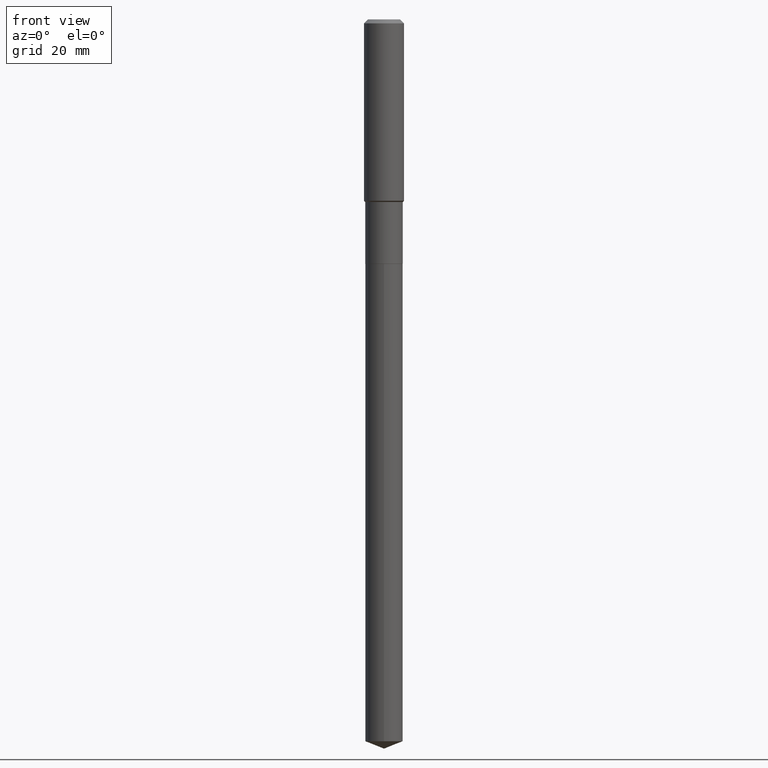
[diagram: clean part render]
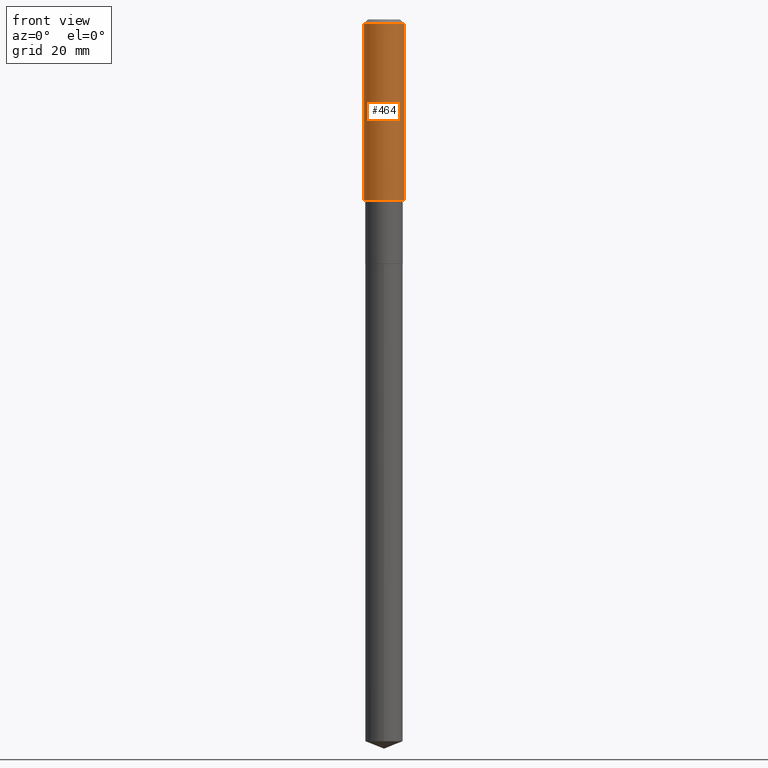
[diagram: same view with one face highlighted and labeled with its STEP entity id]
A machine part, front view. The second image highlights one B-rep face of the part: STEP entity #464.
In plain terms, the highlighted cylindrical surface (edge-blend (fillet) strip) has radius 5 mm, axis along (-0, 0, 1).
Its self-contained STEP definition (entity closure, byte-faithful):
#1 = VERTEX_POINT ( 'NONE', #459 ) ;
#26 = DIRECTION ( 'NONE',  ( -2.445468806185136597E-29, 3.491481338843145583E-15, 1.000000000000000000 ) ) ;
#29 = AXIS2_PLACEMENT_3D ( 'NONE', #263, #102, #296 ) ;
#85 = CIRCLE ( 'NONE', #29, 0.1968500000000002192 ) ;
#88 = VERTEX_POINT ( 'NONE', #355 ) ;
#98 = DIRECTION ( 'NONE',  ( -2.445468806185136597E-29, 3.491481338843145583E-15, 1.000000000000000000 ) ) ;
#102 = DIRECTION ( 'NONE',  ( -2.445468806185136597E-29, 3.491481338843145583E-15, 1.000000000000000000 ) ) ;
#104 = DIRECTION ( 'NONE',  ( -2.445468806185136877E-29, 3.491481338843145188E-15, 1.000000000000000000 ) ) ;
#117 = ORIENTED_EDGE ( 'NONE', *, *, #487, .F. ) ;
#141 = LINE ( 'NONE', #332, #490 ) ;
#144 = AXIS2_PLACEMENT_3D ( 'NONE', #328, #98, #261 ) ;
#151 = FACE_OUTER_BOUND ( 'NONE', #411, .T. ) ;
#152 = EDGE_CURVE ( 'NONE', #1, #88, #141, .T. ) ;
#154 = EDGE_CURVE ( 'NONE', #156, #1, #85, .T. ) ;
#156 = VERTEX_POINT ( 'NONE', #260 ) ;
#177 = CARTESIAN_POINT ( 'NONE',  ( -0.1968500000000000250, -1.780849020687141152E-15, -0.03937000000000024508 ) ) ;
#258 = CARTESIAN_POINT ( 'NONE',  ( 0.000000000000000000, 0.000000000000000000, 0.000000000000000000 ) ) ;
#260 = CARTESIAN_POINT ( 'NONE',  ( -0.1968500000000002192, -4.822941796407783722E-15, -1.781950000000000145 ) ) ;
#261 = DIRECTION ( 'NONE',  ( 1.000000000000000000, -6.982962677686265922E-15, 0.000000000000000000 ) ) ;
#263 = CARTESIAN_POINT ( 'NONE',  ( 4.357703139181603812E-29, -6.221645171751543877E-15, -1.781950000000000145 ) ) ;
#296 = DIRECTION ( 'NONE',  ( 1.000000000000000000, -6.982962677686265922E-15, 0.000000000000000000 ) ) ;
#328 = CARTESIAN_POINT ( 'NONE',  ( 9.627810689950943645E-31, -1.374596203102555315E-16, -0.03937000000000024508 ) ) ;
#332 = CARTESIAN_POINT ( 'NONE',  ( 0.1968500000000001082, -1.374596203102542397E-15, 9.598753983154305062E-30 ) ) ;
#355 = CARTESIAN_POINT ( 'NONE',  ( 0.1968500000000000250, -1.512055823412797189E-15, -0.03937000000000024508 ) ) ;
#356 = CIRCLE ( 'NONE', #144, 0.1968500000000000250 ) ;
#371 = AXIS2_PLACEMENT_3D ( 'NONE', #258, #26, #374 ) ;
#372 = CYLINDRICAL_SURFACE ( 'NONE', #371, 0.1968500000000001082 ) ;
#374 = DIRECTION ( 'NONE',  ( 1.000000000000000000, -6.982962677686266711E-15, 4.876176775795935793E-29 ) ) ;
#388 = ORIENTED_EDGE ( 'NONE', *, *, #415, .F. ) ;
#399 = VECTOR ( 'NONE', #104, 39.37007874015748143 ) ;
#411 = EDGE_LOOP ( 'NONE', ( #117, #451, #414, #388 ) ) ;
#414 = ORIENTED_EDGE ( 'NONE', *, *, #152, .T. ) ;
#415 = EDGE_CURVE ( 'NONE', #452, #88, #356, .T. ) ;
#443 = CARTESIAN_POINT ( 'NONE',  ( -0.1968500000000001082, 1.398703375343757985E-15, -9.682923725166787881E-30 ) ) ;
#451 = ORIENTED_EDGE ( 'NONE', *, *, #154, .T. ) ;
#452 = VERTEX_POINT ( 'NONE', #177 ) ;
#459 = CARTESIAN_POINT ( 'NONE',  ( 0.1968500000000002192, -7.596241374854087063E-15, -1.781950000000000145 ) ) ;
#464 = ADVANCED_FACE ( 'NONE', ( #151 ), #372, .T. ) ;
#478 = DIRECTION ( 'NONE',  ( -2.445468806185136877E-29, 3.491481338843145188E-15, 1.000000000000000000 ) ) ;
#479 = LINE ( 'NONE', #443, #399 ) ;
#487 = EDGE_CURVE ( 'NONE', #156, #452, #479, .T. ) ;
#490 = VECTOR ( 'NONE', #478, 39.37007874015748143 ) ;